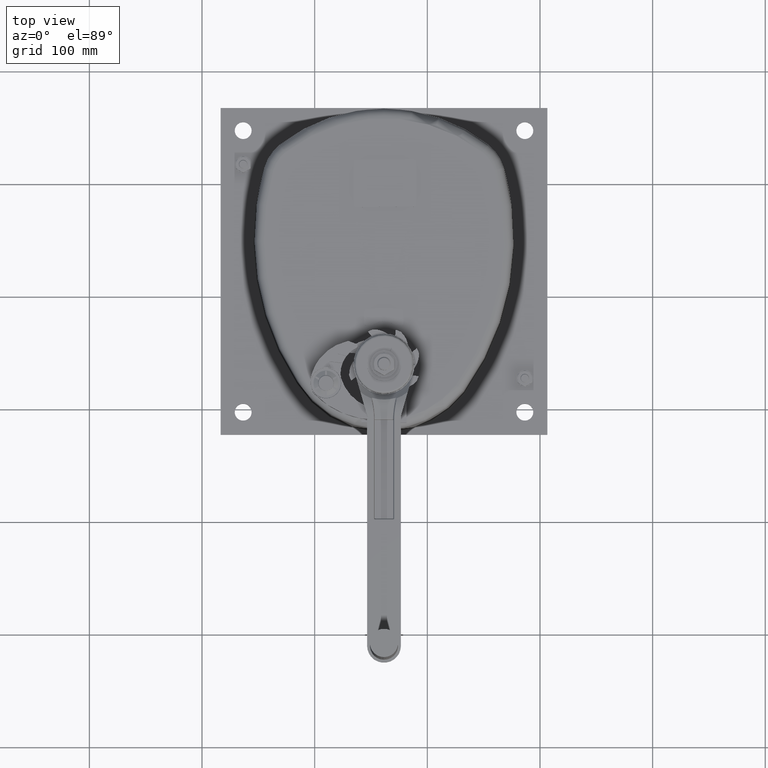
[diagram: clean part render]
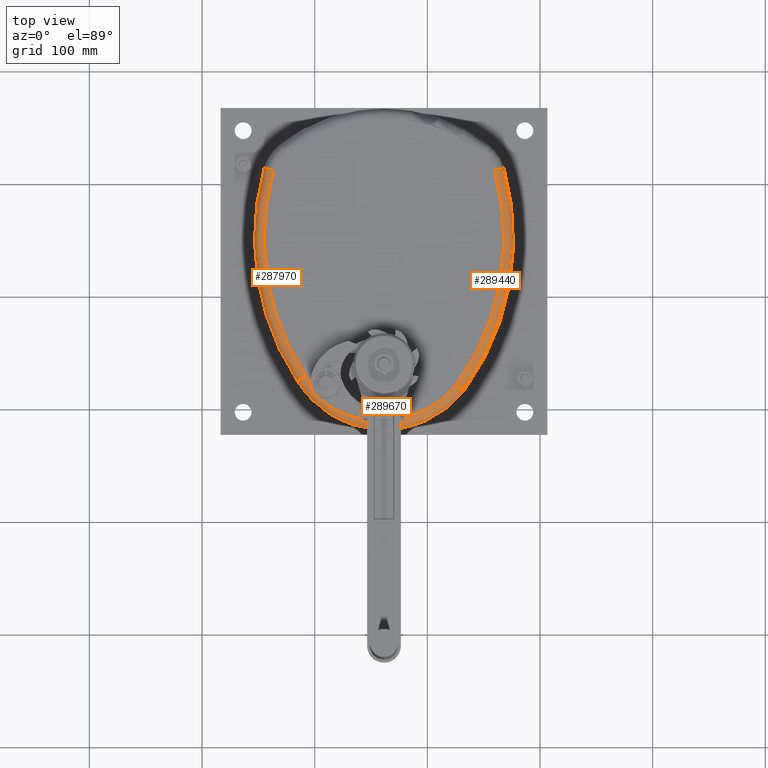
[diagram: same view with one multi-face feature highlighted, each face labeled with its STEP entity id]
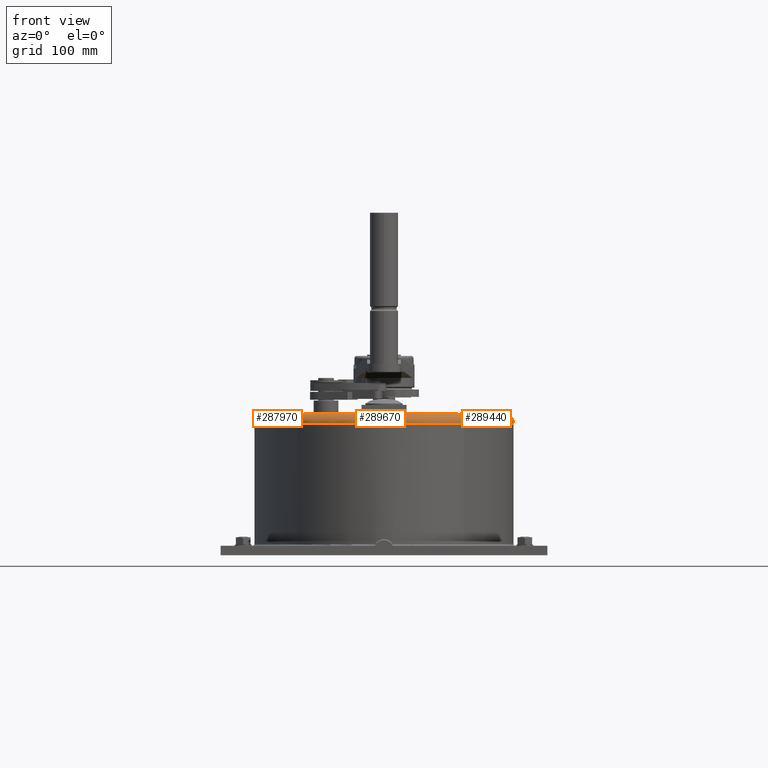
[diagram: same view with one multi-face feature highlighted, each face labeled with its STEP entity id]
A machine part, top view. The highlighted faces form ONE feature: a constant-radius fillet chain: 3 tangent blend faces with common blend radius 8.5 mm. The faces share edges in the B-rep.
A second angle (front view) of the same feature is appended — it is thin or edge-on in the first view.
Their STEP definitions:
[1] entity #287970 (Torus):
#274690=CARTESIAN_POINT('',(75.4740555181235,49.9747951926974,0.));
#274700=VERTEX_POINT('',#274690);
#274730=CARTESIAN_POINT('',(260.,172.5,0.));
#274740=DIRECTION('',(0.,0.,1.));
#274750=DIRECTION('',(1.,0.,0.));
#274760=AXIS2_PLACEMENT_3D('',#274730,#274740,#274750);
#274770=CIRCLE('',#274760,221.5);
#274780=CARTESIAN_POINT('',(46.8140585186033,232.616589679476,0.));
#274790=VERTEX_POINT('',#274780);
#274800=EDGE_CURVE('',#274790,#274700,#274770,.T.);
#281950=CARTESIAN_POINT('',(68.3068132726999,45.4027059204938,-8.5));
#281960=VERTEX_POINT('',#281950);
#285500=CARTESIAN_POINT('',(38.6331081683014,234.923546845506,-8.5));
#285510=VERTEX_POINT('',#285500);
#285540=CARTESIAN_POINT('',(260.,172.5,-8.5));
#285550=DIRECTION('',(0.,0.,1.));
#285560=DIRECTION('',(1.,0.,0.));
#285570=AXIS2_PLACEMENT_3D('',#285540,#285550,#285560);
#285580=CIRCLE('',#285570,230.);
#285590=EDGE_CURVE('',#285510,#281960,#285580,.T.);
#286720=CARTESIAN_POINT('',(260.,172.5,-8.5));
#286730=DIRECTION('',(0.,0.,1.));
#286740=DIRECTION('',(1.,0.,0.));
#286750=AXIS2_PLACEMENT_3D('',#286720,#286730,#286740);
#286760=TOROIDAL_SURFACE('',#286750,221.5,8.5);
#286770=CARTESIAN_POINT('',(145.,92.5,-8.5));
#286780=DIRECTION('',(0.,0.,1.));
#286790=DIRECTION('',(1.,0.,0.));
#286800=AXIS2_PLACEMENT_3D('',#286770,#286780,#286790);
#286810=TOROIDAL_SURFACE('',#286800,81.5,8.5);
#286820=CARTESIAN_POINT('',(68.3068132727001,45.4027059204937,
-8.49999999999999));
#286830=CARTESIAN_POINT('',(68.3068132727001,45.4027059204937,
-8.36158734013068));
#286840=CARTESIAN_POINT('',(68.3096649660083,45.4045261318481,
-8.22285102308471));
#286850=CARTESIAN_POINT('',(68.3153994816324,45.4081864166606,
-8.08402445641227));
#286860=CARTESIAN_POINT('',(68.3211339759411,45.4118466878676,
-7.94519840576499));
#286870=CARTESIAN_POINT('',(68.3297513777462,45.4173470869185,
-7.80628381951965));
#286880=CARTESIAN_POINT('',(68.3412633797954,45.4246950551531,
-7.66752774963768));
#286890=CARTESIAN_POINT('',(68.3527753540653,45.4320430056566,
-7.52877201458381));
#286900=CARTESIAN_POINT('',(68.3671818806412,45.4412384947268,
-7.39017659895003));
#286910=CARTESIAN_POINT('',(68.3844734092554,45.452275389722,
-7.2519957300287));
#286920=CARTESIAN_POINT('',(68.4017649171769,45.4633122715093,
-7.11381502646831));
#286930=CARTESIAN_POINT('',(68.4219412473035,45.4761904443927,
-6.97605071212467));
#286940=CARTESIAN_POINT('',(68.444970943991,45.4908897794936,
-6.83895798262318));
#286950=CARTESIAN_POINT('',(68.4680006400837,45.5055891142149,
-6.70186525666244));
#286960=CARTESIAN_POINT('',(68.493883395441,45.5221094149253,
-6.56544595165419));
#286970=CARTESIAN_POINT('',(68.5225662728514,45.5404168281411,
-6.42995028817379));
#286980=CARTESIAN_POINT('',(68.5512491830754,45.5587242623009,
-6.29445446968465));
#286990=CARTESIAN_POINT('',(68.5827317879726,45.5788185360551,
-6.15988407836067));
#287000=CARTESIAN_POINT('',(68.616941159567,45.6006530243329,
-6.02647867041909));
#287010=CARTESIAN_POINT('',(68.6511506118057,45.6224875640828,
-5.8930729479911));
#287020=CARTESIAN_POINT('',(68.6880862939174,45.6460619755858,
-5.76083389985563));
#287030=CARTESIAN_POINT('',(68.7276578640941,45.6713185088688,
-5.6299849817759));
#287040=CARTESIAN_POINT('',(68.7672295789631,45.6965751345017,
-5.4991355852507));
#287050=CARTESIAN_POINT('',(68.8094365503963,45.7235134787114,
-5.36967786878472));
#287060=CARTESIAN_POINT('',(68.8541747377919,45.7520670398959,
-5.24181403108061));
#287070=CARTESIAN_POINT('',(68.8988968406835,45.7806103353569,
-5.11399616364301));
#287080=CARTESIAN_POINT('',(68.9463529160822,45.8108982551035,
-4.98718542575556));
#287090=CARTESIAN_POINT('',(68.9965034619655,45.8429054707897,
-4.86159234367709));
#287100=CARTESIAN_POINT('',(69.0466532256503,45.8749121872591,
-4.73600122047527));
#287110=CARTESIAN_POINT('',(69.099494615953,45.9086363844744,
-4.61163589678886));
#287120=CARTESIAN_POINT('',(69.1549591960941,45.9440342566532,
-4.48872958794956));
#287130=CARTESIAN_POINT('',(69.2104236393342,45.9794320414608,
-4.36582358247515));
#287140=CARTESIAN_POINT('',(69.2685106493064,46.0165031033724,
-4.24437823285872));
#287150=CARTESIAN_POINT('',(69.3291298224644,46.0551896090047,
-4.1246239499171));
#287160=CARTESIAN_POINT('',(69.3897489198803,46.0938760662992,
-4.00486981660559));
#287170=CARTESIAN_POINT('',(69.4528994221065,46.1341774831825,
-3.88680836895883));
#287180=CARTESIAN_POINT('',(69.5184703201247,46.1760228703529,
-3.77066115247005));
#287190=CARTESIAN_POINT('',(69.5840412130168,46.2178682542519,
-3.65451394506138));
#287200=CARTESIAN_POINT('',(69.652031626995,46.2612570499968,
-3.5402825253667));
#287210=CARTESIAN_POINT('',(69.7223122262752,46.3061065703571,
-3.42817425353497));
#287220=CARTESIAN_POINT('',(69.7925929021646,46.3509561396056,
-3.31606585949991));
#287230=CARTESIAN_POINT('',(69.8651627933197,46.3972658141398,
-3.20608207009168));
#287240=CARTESIAN_POINT('',(69.9398774176082,46.4449432414326,
-3.09841146245206));
#287250=CARTESIAN_POINT('',(70.0145922137182,46.4926207783693,
-2.99074060720184));
#287260=CARTESIAN_POINT('',(70.0914507015457,46.5416654032925,
-2.88538425474036));
#287270=CARTESIAN_POINT('',(70.1702973508385,46.5919777170714,
-2.7825083302766));
#287280=CARTESIAN_POINT('',(70.2491442834433,46.6422902116327,
-2.67963203615891));
#287290=CARTESIAN_POINT('',(70.3299782931071,46.6938697028875,
-2.57923731952603));
#287300=CARTESIAN_POINT('',(70.4126378565436,46.7466129738086,
-2.48146435919401));
#287310=CARTESIAN_POINT('',(70.4952591739025,46.7993318407387,
-2.38373663781647));
#287320=CARTESIAN_POINT('',(70.5799721687508,46.8533842966931,
-2.28831028483606));
#287330=CARTESIAN_POINT('',(70.6666766018715,46.9087062121126,
-2.19532318774382));
#287340=CARTESIAN_POINT('',(70.7533777370631,46.9640260232827,
-2.10233962755087));
#287350=CARTESIAN_POINT('',(70.8420559185902,47.0206061106263,
-2.01181188782708));
#287360=CARTESIAN_POINT('',(70.9325565161011,47.0783476455374,
-1.92390766875983));
#287370=CARTESIAN_POINT('',(71.0230571022646,47.1360891732087,
-1.83600346071447));
#287380=CARTESIAN_POINT('',(71.1153789476922,47.1949914100936,
-1.75072390504573));
#287390=CARTESIAN_POINT('',(71.2093539950467,47.2549469708587,
-1.66821804179678));
#287400=CARTESIAN_POINT('',(71.3033291419621,47.3149025951431,
-1.58571209113781));
#287410=CARTESIAN_POINT('',(71.398956268727,47.3759107633909,
-1.50598084058202));
#287420=CARTESIAN_POINT('',(71.4960580093096,47.4378581641438,
-1.42915136722493));
#287430=CARTESIAN_POINT('',(71.5931238060417,47.4997826340193,
-1.3523503335959));
#287440=CARTESIAN_POINT('',(71.6918586104775,47.5627703546809,
-1.27829269406625));
#287450=CARTESIAN_POINT('',(71.7921528472642,47.6267512549734,
-1.20708208539731));
#287460=CARTESIAN_POINT('',(71.8924423452481,47.690729132232,
-1.13587484135877));
#287470=CARTESIAN_POINT('',(71.9942705502783,47.7556869670862,
-1.06753054722017));
#287480=CARTESIAN_POINT('',(72.0974585405057,47.8215104638231,
-1.00217830598582));
#287490=CARTESIAN_POINT('',(72.2006465138445,47.8873339497869,
-0.936826075447576));
#287500=CARTESIAN_POINT('',(72.3051929536792,47.9540222559984,
-0.874466742309491));
#287510=CARTESIAN_POINT('',(72.410908713665,48.0214545834286,
-0.815208092169677));
#287520=CARTESIAN_POINT('',(72.5166245814878,48.0888869796442,
-0.755949381582071));
#287530=CARTESIAN_POINT('',(72.6235084060055,48.1570625271651,
-0.699792062400562));
#287540=CARTESIAN_POINT('',(72.7313653822578,48.225856838866,
-0.646820285655887));
#287550=CARTESIAN_POINT('',(72.8391631884439,48.2946134101803,
-0.59387756909489));
#287560=CARTESIAN_POINT('',(72.9481996366964,48.3641580873387,
-0.543982701882982));
#287570=CARTESIAN_POINT('',(73.0584388499538,48.434467835126,
-0.497190318189544));
#287580=CARTESIAN_POINT('',(73.168666473866,48.5047701913154,
-0.450402853735539));
#287590=CARTESIAN_POINT('',(73.2800476767774,48.5758062461173,
-0.406741207562143));
#287600=CARTESIAN_POINT('',(73.3923937746995,48.6474555220536,
-0.366309494031849));
#287610=CARTESIAN_POINT('',(73.504739634281,48.719104645987,
-0.32587786627684));
#287620=CARTESIAN_POINT('',(73.618048971405,48.7913660867799,
-0.2886767914292));
#287630=CARTESIAN_POINT('',(73.732120325195,48.864111244036,
-0.254789545767885));
#287640=CARTESIAN_POINT('',(73.846191574238,48.9368563344933,
-0.220902331223826));
#287650=CARTESIAN_POINT('',(73.9610233494828,49.0100841900353,
-0.190329435755805));
#287660=CARTESIAN_POINT('',(74.076405994771,49.0836610143371,
-0.163130449998268));
#287670=CARTESIAN_POINT('',(74.1917886689475,49.1572378570603,
-0.135931457430959));
#287680=CARTESIAN_POINT('',(74.3077206860372,49.2311626948109,
-0.112106721867781));
#287690=CARTESIAN_POINT('',(74.4239890019379,49.3052995996301,
-0.0916905772519767));
#287700=CARTESIAN_POINT('',(74.5402574839158,49.3794366103462,
-0.0712744034738203));
#287710=CARTESIAN_POINT('',(74.6568607382957,49.4537847155454,
-0.054267016902175));
#287720=CARTESIAN_POINT('',(74.7735873612618,49.5282090680902,
-0.0406771864421707));
#287730=CARTESIAN_POINT('',(74.8903142946593,49.6026336185646,
-0.0270873198403748));
#287740=CARTESIAN_POINT('',(75.0071631105888,49.6771334688953,
-0.0169150496566816));
#287750=CARTESIAN_POINT('',(75.1239293074418,49.7515782065526,
-0.0101445654689751));
#287760=CARTESIAN_POINT('',(75.1823149394772,49.7888021906933,
-0.0067591764682359));
#287770=CARTESIAN_POINT('',(75.2406691971625,49.8260055630818,
-0.00422424665373172));
#287780=CARTESIAN_POINT('',(75.2989980360501,49.8631921191381,
-0.00253482833790151));
#287790=CARTESIAN_POINT('',(75.357337942647,49.9003857312236,
-0.00084508946038878));
#287800=CARTESIAN_POINT('',(75.4156991337333,49.9375923016104,
1.34041386773488E-16));
#287810=CARTESIAN_POINT('',(75.4740555181235,49.9747951926975,0.));
#287820=B_SPLINE_CURVE_WITH_KNOTS('',3,(#286820,#286830,#286840,#286850,
#286860,#286870,#286880,#286890,#286900,#286910,#286920,#286930,#286940,
#286950,#286960,#286970,#286980,#286990,#287000,#287010,#287020,#287030,
#287040,#287050,#287060,#287070,#287080,#287090,#287100,#287110,#287120,
#287130,#287140,#287150,#287160,#287170,#287180,#287190,#287200,#287210,
#287220,#287230,#287240,#287250,#287260,#287270,#287280,#287290,#287300,
#287310,#287320,#287330,#287340,#287350,#287360,#287370,#287380,#287390,
#287400,#287410,#287420,#287430,#287440,#287450,#287460,#287470,#287480,
#287490,#287500,#287510,#287520,#287530,#287540,#287550,#287560,#287570,
#287580,#287590,#287600,#287610,#287620,#287630,#287640,#287650,#287660,
#287670,#287680,#287690,#287700,#287710,#287720,#287730,#287740,#287750,
#287760,#287770,#287780,#287790,#287800,#287810),.UNSPECIFIED.,.F.,.F.,(
4,3,3,3,3,3,3,3,3,3,3,3,3,3,3,3,3,3,3,3,3,3,3,3,3,3,3,3,3,3,3,3,3,4),(0.
,0.416141813575699,0.833809253572611,1.25253363134683,1.67180305770694,
2.09108447814528,2.50984436035732,2.92756935165814,3.34378822518114,
3.75985575044589,4.17746437966038,4.59615194734675,5.01540819225644,
5.43470070869969,5.85349565658832,6.2712783807074,6.68757525814475,
7.10317250612274,7.51931107335108,7.93550327183336,8.35124720217719,
8.76682138964509,9.18294978734633,9.59914819371969,10.0149145435469,
10.4307500826794,10.8479483051717,11.2660700088339,11.6846049314201,
12.1030264811246,12.5208124593429,12.9374660637787,13.1452322330893,
13.3528591467151),.UNSPECIFIED.);
#287830=SURFACE_CURVE('',#287820,(#286810,#286760),.CURVE_3D.);
#287840=EDGE_CURVE('',#281960,#274700,#287830,.T.);
#287850=ORIENTED_EDGE('',*,*,#287840,.T.);
#287860=ORIENTED_EDGE('',*,*,#285590,.T.);
#287870=CARTESIAN_POINT('',(46.8140585186034,232.616589679476,-8.5));
#287880=DIRECTION('',(-0.271406725415243,-0.962464747094342,0.));
#287890=DIRECTION('',(-0.962464747094342,0.271406725415243,0.));
#287900=AXIS2_PLACEMENT_3D('',#287870,#287880,#287890);
#287910=CIRCLE('',#287900,8.5);
#287920=EDGE_CURVE('',#274790,#285510,#287910,.T.);
#287930=ORIENTED_EDGE('',*,*,#287920,.T.);
#287940=ORIENTED_EDGE('',*,*,#274800,.F.);
#287950=EDGE_LOOP('',(#287940,#287930,#287860,#287850));
#287960=FACE_OUTER_BOUND('',#287950,.T.);
#287970=ADVANCED_FACE('',(#287960),#286760,.T.);
[2] entity #289670 (Torus):
#274110=CARTESIAN_POINT('',(209.049851696467,42.102911813672,0.));
#274120=VERTEX_POINT('',#274110);
#274150=CARTESIAN_POINT('',(145.,92.5,0.));
#274160=DIRECTION('',(0.,0.,1.));
#274170=DIRECTION('',(1.,0.,0.));
#274180=AXIS2_PLACEMENT_3D('',#274150,#274160,#274170);
#274190=CIRCLE('',#274180,81.5);
#274200=CARTESIAN_POINT('',(165.,13.4920890036953,0.));
#274210=VERTEX_POINT('',#274200);
#274220=EDGE_CURVE('',#274210,#274120,#274190,.T.);
#274440=CARTESIAN_POINT('',(125.,13.4920890036953,0.));
#274450=VERTEX_POINT('',#274440);
#274480=CARTESIAN_POINT('',(87.6882504963632,34.5550833218963,
4.44089209850063E-16));
#274490=VERTEX_POINT('',#274480);
#274500=EDGE_CURVE('',#274490,#274450,#274190,.T.);
#274650=CARTESIAN_POINT('',(84.4988588239651,37.8935725724756,
4.44089209850063E-16));
#274660=VERTEX_POINT('',#274650);
#274690=CARTESIAN_POINT('',(75.4740555181235,49.9747951926974,0.));
#274700=VERTEX_POINT('',#274690);
#274710=EDGE_CURVE('',#274700,#274660,#274190,.T.);
#279170=CARTESIAN_POINT('',(215.829106266331,36.9730902578501,-8.5));
#279180=VERTEX_POINT('',#279170);
#281900=CARTESIAN_POINT('',(145.,92.5,-8.5));
#281910=DIRECTION('',(0.,0.,1.));
#281920=DIRECTION('',(1.,0.,0.));
#281930=AXIS2_PLACEMENT_3D('',#281900,#281910,#281920);
#281940=CIRCLE('',#281930,90.);
#281950=CARTESIAN_POINT('',(68.3068132726999,45.4027059204938,-8.5));
#281960=VERTEX_POINT('',#281950);
#281970=EDGE_CURVE('',#281960,#279180,#281940,.T.);
#286720=CARTESIAN_POINT('',(260.,172.5,-8.5));
#286730=DIRECTION('',(0.,0.,1.));
#286740=DIRECTION('',(1.,0.,0.));
#286750=AXIS2_PLACEMENT_3D('',#286720,#286730,#286740);
#286760=TOROIDAL_SURFACE('',#286750,221.5,8.5);
#286770=CARTESIAN_POINT('',(145.,92.5,-8.5));
#286780=DIRECTION('',(0.,0.,1.));
#286790=DIRECTION('',(1.,0.,0.));
#286800=AXIS2_PLACEMENT_3D('',#286770,#286780,#286790);
#286810=TOROIDAL_SURFACE('',#286800,81.5,8.5);
#286820=CARTESIAN_POINT('',(68.3068132727001,45.4027059204937,
-8.49999999999999));
#286830=CARTESIAN_POINT('',(68.3068132727001,45.4027059204937,
-8.36158734013068));
#286840=CARTESIAN_POINT('',(68.3096649660083,45.4045261318481,
-8.22285102308471));
#286850=CARTESIAN_POINT('',(68.3153994816324,45.4081864166606,
-8.08402445641227));
#286860=CARTESIAN_POINT('',(68.3211339759411,45.4118466878676,
-7.94519840576499));
#286870=CARTESIAN_POINT('',(68.3297513777462,45.4173470869185,
-7.80628381951965));
#286880=CARTESIAN_POINT('',(68.3412633797954,45.4246950551531,
-7.66752774963768));
#286890=CARTESIAN_POINT('',(68.3527753540653,45.4320430056566,
-7.52877201458381));
#286900=CARTESIAN_POINT('',(68.3671818806412,45.4412384947268,
-7.39017659895003));
#286910=CARTESIAN_POINT('',(68.3844734092554,45.452275389722,
-7.2519957300287));
#286920=CARTESIAN_POINT('',(68.4017649171769,45.4633122715093,
-7.11381502646831));
#286930=CARTESIAN_POINT('',(68.4219412473035,45.4761904443927,
-6.97605071212467));
#286940=CARTESIAN_POINT('',(68.444970943991,45.4908897794936,
-6.83895798262318));
#286950=CARTESIAN_POINT('',(68.4680006400837,45.5055891142149,
-6.70186525666244));
#286960=CARTESIAN_POINT('',(68.493883395441,45.5221094149253,
-6.56544595165419));
#286970=CARTESIAN_POINT('',(68.5225662728514,45.5404168281411,
-6.42995028817379));
#286980=CARTESIAN_POINT('',(68.5512491830754,45.5587242623009,
-6.29445446968465));
#286990=CARTESIAN_POINT('',(68.5827317879726,45.5788185360551,
-6.15988407836067));
#287000=CARTESIAN_POINT('',(68.616941159567,45.6006530243329,
-6.02647867041909));
#287010=CARTESIAN_POINT('',(68.6511506118057,45.6224875640828,
-5.8930729479911));
#287020=CARTESIAN_POINT('',(68.6880862939174,45.6460619755858,
-5.76083389985563));
#287030=CARTESIAN_POINT('',(68.7276578640941,45.6713185088688,
-5.6299849817759));
#287040=CARTESIAN_POINT('',(68.7672295789631,45.6965751345017,
-5.4991355852507));
#287050=CARTESIAN_POINT('',(68.8094365503963,45.7235134787114,
-5.36967786878472));
#287060=CARTESIAN_POINT('',(68.8541747377919,45.7520670398959,
-5.24181403108061));
#287070=CARTESIAN_POINT('',(68.8988968406835,45.7806103353569,
-5.11399616364301));
#287080=CARTESIAN_POINT('',(68.9463529160822,45.8108982551035,
-4.98718542575556));
#287090=CARTESIAN_POINT('',(68.9965034619655,45.8429054707897,
-4.86159234367709));
#287100=CARTESIAN_POINT('',(69.0466532256503,45.8749121872591,
-4.73600122047527));
#287110=CARTESIAN_POINT('',(69.099494615953,45.9086363844744,
-4.61163589678886));
#287120=CARTESIAN_POINT('',(69.1549591960941,45.9440342566532,
-4.48872958794956));
#287130=CARTESIAN_POINT('',(69.2104236393342,45.9794320414608,
-4.36582358247515));
#287140=CARTESIAN_POINT('',(69.2685106493064,46.0165031033724,
-4.24437823285872));
#287150=CARTESIAN_POINT('',(69.3291298224644,46.0551896090047,
-4.1246239499171));
#287160=CARTESIAN_POINT('',(69.3897489198803,46.0938760662992,
-4.00486981660559));
#287170=CARTESIAN_POINT('',(69.4528994221065,46.1341774831825,
-3.88680836895883));
#287180=CARTESIAN_POINT('',(69.5184703201247,46.1760228703529,
-3.77066115247005));
#287190=CARTESIAN_POINT('',(69.5840412130168,46.2178682542519,
-3.65451394506138));
#287200=CARTESIAN_POINT('',(69.652031626995,46.2612570499968,
-3.5402825253667));
#287210=CARTESIAN_POINT('',(69.7223122262752,46.3061065703571,
-3.42817425353497));
#287220=CARTESIAN_POINT('',(69.7925929021646,46.3509561396056,
-3.31606585949991));
#287230=CARTESIAN_POINT('',(69.8651627933197,46.3972658141398,
-3.20608207009168));
#287240=CARTESIAN_POINT('',(69.9398774176082,46.4449432414326,
-3.09841146245206));
#287250=CARTESIAN_POINT('',(70.0145922137182,46.4926207783693,
-2.99074060720184));
#287260=CARTESIAN_POINT('',(70.0914507015457,46.5416654032925,
-2.88538425474036));
#287270=CARTESIAN_POINT('',(70.1702973508385,46.5919777170714,
-2.7825083302766));
#287280=CARTESIAN_POINT('',(70.2491442834433,46.6422902116327,
-2.67963203615891));
#287290=CARTESIAN_POINT('',(70.3299782931071,46.6938697028875,
-2.57923731952603));
#287300=CARTESIAN_POINT('',(70.4126378565436,46.7466129738086,
-2.48146435919401));
#287310=CARTESIAN_POINT('',(70.4952591739025,46.7993318407387,
-2.38373663781647));
#287320=CARTESIAN_POINT('',(70.5799721687508,46.8533842966931,
-2.28831028483606));
#287330=CARTESIAN_POINT('',(70.6666766018715,46.9087062121126,
-2.19532318774382));
#287340=CARTESIAN_POINT('',(70.7533777370631,46.9640260232827,
-2.10233962755087));
#287350=CARTESIAN_POINT('',(70.8420559185902,47.0206061106263,
-2.01181188782708));
#287360=CARTESIAN_POINT('',(70.9325565161011,47.0783476455374,
-1.92390766875983));
#287370=CARTESIAN_POINT('',(71.0230571022646,47.1360891732087,
-1.83600346071447));
#287380=CARTESIAN_POINT('',(71.1153789476922,47.1949914100936,
-1.75072390504573));
#287390=CARTESIAN_POINT('',(71.2093539950467,47.2549469708587,
-1.66821804179678));
#287400=CARTESIAN_POINT('',(71.3033291419621,47.3149025951431,
-1.58571209113781));
#287410=CARTESIAN_POINT('',(71.398956268727,47.3759107633909,
-1.50598084058202));
#287420=CARTESIAN_POINT('',(71.4960580093096,47.4378581641438,
-1.42915136722493));
#287430=CARTESIAN_POINT('',(71.5931238060417,47.4997826340193,
-1.3523503335959));
#287440=CARTESIAN_POINT('',(71.6918586104775,47.5627703546809,
-1.27829269406625));
#287450=CARTESIAN_POINT('',(71.7921528472642,47.6267512549734,
-1.20708208539731));
#287460=CARTESIAN_POINT('',(71.8924423452481,47.690729132232,
-1.13587484135877));
#287470=CARTESIAN_POINT('',(71.9942705502783,47.7556869670862,
-1.06753054722017));
#287480=CARTESIAN_POINT('',(72.0974585405057,47.8215104638231,
-1.00217830598582));
#287490=CARTESIAN_POINT('',(72.2006465138445,47.8873339497869,
-0.936826075447576));
#287500=CARTESIAN_POINT('',(72.3051929536792,47.9540222559984,
-0.874466742309491));
#287510=CARTESIAN_POINT('',(72.410908713665,48.0214545834286,
-0.815208092169677));
#287520=CARTESIAN_POINT('',(72.5166245814878,48.0888869796442,
-0.755949381582071));
#287530=CARTESIAN_POINT('',(72.6235084060055,48.1570625271651,
-0.699792062400562));
#287540=CARTESIAN_POINT('',(72.7313653822578,48.225856838866,
-0.646820285655887));
#287550=CARTESIAN_POINT('',(72.8391631884439,48.2946134101803,
-0.59387756909489));
#287560=CARTESIAN_POINT('',(72.9481996366964,48.3641580873387,
-0.543982701882982));
#287570=CARTESIAN_POINT('',(73.0584388499538,48.434467835126,
-0.497190318189544));
#287580=CARTESIAN_POINT('',(73.168666473866,48.5047701913154,
-0.450402853735539));
#287590=CARTESIAN_POINT('',(73.2800476767774,48.5758062461173,
-0.406741207562143));
#287600=CARTESIAN_POINT('',(73.3923937746995,48.6474555220536,
-0.366309494031849));
#287610=CARTESIAN_POINT('',(73.504739634281,48.719104645987,
-0.32587786627684));
#287620=CARTESIAN_POINT('',(73.618048971405,48.7913660867799,
-0.2886767914292));
#287630=CARTESIAN_POINT('',(73.732120325195,48.864111244036,
-0.254789545767885));
#287640=CARTESIAN_POINT('',(73.846191574238,48.9368563344933,
-0.220902331223826));
#287650=CARTESIAN_POINT('',(73.9610233494828,49.0100841900353,
-0.190329435755805));
#287660=CARTESIAN_POINT('',(74.076405994771,49.0836610143371,
-0.163130449998268));
#287670=CARTESIAN_POINT('',(74.1917886689475,49.1572378570603,
-0.135931457430959));
#287680=CARTESIAN_POINT('',(74.3077206860372,49.2311626948109,
-0.112106721867781));
#287690=CARTESIAN_POINT('',(74.4239890019379,49.3052995996301,
-0.0916905772519767));
#287700=CARTESIAN_POINT('',(74.5402574839158,49.3794366103462,
-0.0712744034738203));
#287710=CARTESIAN_POINT('',(74.6568607382957,49.4537847155454,
-0.054267016902175));
#287720=CARTESIAN_POINT('',(74.7735873612618,49.5282090680902,
-0.0406771864421707));
#287730=CARTESIAN_POINT('',(74.8903142946593,49.6026336185646,
-0.0270873198403748));
#287740=CARTESIAN_POINT('',(75.0071631105888,49.6771334688953,
-0.0169150496566816));
#287750=CARTESIAN_POINT('',(75.1239293074418,49.7515782065526,
-0.0101445654689751));
#287760=CARTESIAN_POINT('',(75.1823149394772,49.7888021906933,
-0.0067591764682359));
#287770=CARTESIAN_POINT('',(75.2406691971625,49.8260055630818,
-0.00422424665373172));
#287780=CARTESIAN_POINT('',(75.2989980360501,49.8631921191381,
-0.00253482833790151));
#287790=CARTESIAN_POINT('',(75.357337942647,49.9003857312236,
-0.00084508946038878));
#287800=CARTESIAN_POINT('',(75.4156991337333,49.9375923016104,
1.34041386773488E-16));
#287810=CARTESIAN_POINT('',(75.4740555181235,49.9747951926975,0.));
#287820=B_SPLINE_CURVE_WITH_KNOTS('',3,(#286820,#286830,#286840,#286850,
#286860,#286870,#286880,#286890,#286900,#286910,#286920,#286930,#286940,
#286950,#286960,#286970,#286980,#286990,#287000,#287010,#287020,#287030,
#287040,#287050,#287060,#287070,#287080,#287090,#287100,#287110,#287120,
#287130,#287140,#287150,#287160,#287170,#287180,#287190,#287200,#287210,
#287220,#287230,#287240,#287250,#287260,#287270,#287280,#287290,#287300,
#287310,#287320,#287330,#287340,#287350,#287360,#287370,#287380,#287390,
#287400,#287410,#287420,#287430,#287440,#287450,#287460,#287470,#287480,
#287490,#287500,#287510,#287520,#287530,#287540,#287550,#287560,#287570,
#287580,#287590,#287600,#287610,#287620,#287630,#287640,#287650,#287660,
#287670,#287680,#287690,#287700,#287710,#287720,#287730,#287740,#287750,
#287760,#287770,#287780,#287790,#287800,#287810),.UNSPECIFIED.,.F.,.F.,(
4,3,3,3,3,3,3,3,3,3,3,3,3,3,3,3,3,3,3,3,3,3,3,3,3,3,3,3,3,3,3,3,3,4),(0.
,0.416141813575699,0.833809253572611,1.25253363134683,1.67180305770694,
2.09108447814528,2.50984436035732,2.92756935165814,3.34378822518114,
3.75985575044589,4.17746437966038,4.59615194734675,5.01540819225644,
5.43470070869969,5.85349565658832,6.2712783807074,6.68757525814475,
7.10317250612274,7.51931107335108,7.93550327183336,8.35124720217719,
8.76682138964509,9.18294978734633,9.59914819371969,10.0149145435469,
10.4307500826794,10.8479483051717,11.2660700088339,11.6846049314201,
12.1030264811246,12.5208124593429,12.9374660637787,13.1452322330893,
13.3528591467151),.UNSPECIFIED.);
#287830=SURFACE_CURVE('',#287820,(#286810,#286760),.CURVE_3D.);
#287840=EDGE_CURVE('',#281960,#274700,#287830,.T.);
#288300=CARTESIAN_POINT('',(30.,172.5,-8.5));
#288310=DIRECTION('',(0.,0.,1.));
#288320=DIRECTION('',(1.,0.,0.));
#288330=AXIS2_PLACEMENT_3D('',#288300,#288310,#288320);
#288340=TOROIDAL_SURFACE('',#288330,221.5,8.5);
#288370=CARTESIAN_POINT('',(209.049851696467,42.1029118136719,0.));
#288380=CARTESIAN_POINT('',(209.105023822483,42.0611385456751,
-1.71650608657621E-16));
#288390=CARTESIAN_POINT('',(209.160201076155,42.0193620456561,
-0.000844992334589945));
#288400=CARTESIAN_POINT('',(209.215358788938,41.9776009868681,
-0.00253453639512458));
#288410=CARTESIAN_POINT('',(209.27050589828,41.9358479561662,
-0.00422375566013131));
#288420=CARTESIAN_POINT('',(209.325677833636,41.8940767753073,
-0.00675838102466053));
#288430=CARTESIAN_POINT('',(209.380881295985,41.8522823693869,
-0.0101434779447347));
#288440=CARTESIAN_POINT('',(209.491283258178,41.7686973146462,
-0.0169133674822416));
#288450=CARTESIAN_POINT('',(209.601769380394,41.685051121432,
-0.0270850331655406));
#288460=CARTESIAN_POINT('',(209.712146543568,41.6014899666871,
-0.0406750314328868));
#288470=CARTESIAN_POINT('',(209.822523405161,41.5179290402538,
-0.0542649925686989));
#288480=CARTESIAN_POINT('',(209.932789903894,41.4344542150695,
-0.0712732497795894));
#288490=CARTESIAN_POINT('',(210.042746128082,41.3512167747191,
-0.0916918105138906));
#288500=CARTESIAN_POINT('',(210.152702187599,41.2679794590247,
-0.112110340669469));
#288510=CARTESIAN_POINT('',(210.262346529503,41.1849806216159,
-0.135938981467848));
#288520=CARTESIAN_POINT('',(210.371477438747,41.1023728736713,
-0.163144147097224));
#288530=CARTESIAN_POINT('',(210.480608313228,41.0197651520423,
-0.190349304060111));
#288540=CARTESIAN_POINT('',(210.589224308842,40.9375496147751,
-0.220930641445527));
#288550=CARTESIAN_POINT('',(210.697126680426,40.8558765955274,
-0.25482923175112));
#288560=CARTESIAN_POINT('',(210.805029143568,40.7742035069787,
-0.288727850820318));
#288570=CARTESIAN_POINT('',(210.91221656832,40.6930740058216,
-0.325943235227469));
#288580=CARTESIAN_POINT('',(211.018497732152,40.6126326990491,
-0.366392629152069));
#288590=CARTESIAN_POINT('',(211.124779113611,40.5321912275606,
-0.406842105903111));
#288600=CARTESIAN_POINT('',(211.230152887667,40.4524389692811,
-0.450524973509988));
#288610=CARTESIAN_POINT('',(211.334439698541,40.3735115223656,
-0.497337434355641));
#288620=CARTESIAN_POINT('',(211.438727522066,40.2945833090444,
-0.544150349762304));
#288630=CARTESIAN_POINT('',(211.541924294706,40.2164830003671,
-0.594090705298137));
#288640=CARTESIAN_POINT('',(211.643874704169,40.1393279750616,
-0.647041928354469));
#288650=CARTESIAN_POINT('',(211.745848507888,40.0621552452219,
-0.700005301970476));
#288660=CARTESIAN_POINT('',(211.846910939203,39.9856742826995,
-0.756155592887328));
#288670=CARTESIAN_POINT('',(211.946877715917,39.9100244086762,
-0.815410183469491));
#288680=CARTESIAN_POINT('',(212.046844376732,39.8343746223599,
-0.874664705353015));
#288690=CARTESIAN_POINT('',(212.145714093953,39.7595568997986,
-0.937022826471761));
#288700=CARTESIAN_POINT('',(212.243307491016,39.6857068271872,
-1.00237813986788));
#288710=CARTESIAN_POINT('',(212.340900890635,39.6118567526408,
-1.0677334549763));
#288720=CARTESIAN_POINT('',(212.43721671998,39.5389752735602,
-1.13608512387617));
#288730=CARTESIAN_POINT('',(212.532084873993,39.4671909402862,
-1.20730516453584));
#288740=CARTESIAN_POINT('',(212.626953152673,39.3954065126798,
-1.27852529878646));
#288750=CARTESIAN_POINT('',(212.720372536172,39.3247201536065,
-1.35261281658676));
#288760=CARTESIAN_POINT('',(212.81218618713,39.2552503575278,
-1.42942161380997));
#288770=CARTESIAN_POINT('',(212.904002316918,39.1857786858697,
-1.50623248475449));
#288780=CARTESIAN_POINT('',(212.994431900334,39.1173577327992,
-1.58594822516644));
#288790=CARTESIAN_POINT('',(213.083306875219,39.0501144940632,
-1.66844329574394));
#288800=CARTESIAN_POINT('',(213.172181743525,38.9828713359654,
-1.75093826739321));
#288810=CARTESIAN_POINT('',(213.259500846672,38.9168067670866,
-1.83621156966428));
#288820=CARTESIAN_POINT('',(213.345104518842,38.8520414168386,
-1.92411544590618));
#288830=CARTESIAN_POINT('',(213.43070818995,38.7872760673939,
-2.01201932105792));
#288840=CARTESIAN_POINT('',(213.514595332279,38.7238107667225,
-2.10255264388109));
#288850=CARTESIAN_POINT('',(213.596618635351,38.6617567860092,
-2.19554865307501));
#288860=CARTESIAN_POINT('',(213.678642034724,38.5997027324407,
-2.28854477145211));
#288870=CARTESIAN_POINT('',(213.758800584014,38.5390607632682,
-2.38400235184051));
#288880=CARTESIAN_POINT('',(213.83696263254,38.4799302953583,
-2.48173984327576));
#288890=CARTESIAN_POINT('',(213.915110992522,38.4208101829845,
-2.57946021791553));
#288900=CARTESIAN_POINT('',(213.991537527405,38.3629937765797,
-2.67980185906085));
#288910=CARTESIAN_POINT('',(214.066092760216,38.3065939965408,
-2.78263060192697));
#288920=CARTESIAN_POINT('',(214.14064747211,38.250194610567,
-2.88545862632882));
#288930=CARTESIAN_POINT('',(214.213328775111,38.1952134445649,
-2.99077122546691));
#288940=CARTESIAN_POINT('',(214.28398923453,38.1417618674122,
-3.09840430185684));
#288950=CARTESIAN_POINT('',(214.354649521149,38.0883104209748,
-3.20603711503123));
#288960=CARTESIAN_POINT('',(214.423287978769,38.0363893085863,
-3.31598909586912));
#288970=CARTESIAN_POINT('',(214.48976721312,37.9861023001862,
-3.42807316890557));
#288980=CARTESIAN_POINT('',(214.556246365809,37.935815353558,
-3.54015710425963));
#288990=CARTESIAN_POINT('',(214.620565375046,37.8871632068245,
-3.65437168282606));
#289000=CARTESIAN_POINT('',(214.682600852476,37.8402390345862,
-3.77051066035857));
#289010=CARTESIAN_POINT('',(214.744636326317,37.793314865063,
-3.88664963117137));
#289020=CARTESIAN_POINT('',(214.804387436284,37.7481192991821,
-4.00471144858724));
#289030=CARTESIAN_POINT('',(214.861747890916,37.7047325822943,
-4.12447523404108));
#289040=CARTESIAN_POINT('',(214.919108409248,37.661345817225,
-4.24423915249406));
#289050=CARTESIAN_POINT('',(214.974077548283,37.6197684484309,
-4.36570342049234));
#289060=CARTESIAN_POINT('',(215.02656834772,37.5800661049986,
-4.48863777472019));
#289070=CARTESIAN_POINT('',(215.079059269001,37.5403636694077,
-4.61157241430835));
#289080=CARTESIAN_POINT('',(215.129071252804,37.5025367111968,
-4.73597549557673));
#289090=CARTESIAN_POINT('',(215.176538036743,37.4666352128318,
-4.86161335143313));
#289100=CARTESIAN_POINT('',(215.224004992352,37.4307335846234,
-4.98725166167835));
#289110=CARTESIAN_POINT('',(215.268926292477,37.3967577606983,
-5.11412312074658));
#289120=CARTESIAN_POINT('',(215.31125682274,37.3647417392638,
-5.2419973951236));
#289130=CARTESIAN_POINT('',(215.353564929047,37.3327426778311,
-5.36980393004314));
#289140=CARTESIAN_POINT('',(215.393472735379,37.3025593599918,
-5.49917693505068));
#289150=CARTESIAN_POINT('',(215.43089778948,37.2742540427655,
-5.62996621347086));
#289160=CARTESIAN_POINT('',(215.468321521392,37.2459497255375,
-5.76075087123742));
#289170=CARTESIAN_POINT('',(215.503256302342,37.2195280970595,
-5.89293267113471));
#289180=CARTESIAN_POINT('',(215.535615876237,37.195054300293,
-6.02628980220177));
#289190=CARTESIAN_POINT('',(215.567975369101,37.1705805648117,
-6.15964659932696));
#289200=CARTESIAN_POINT('',(215.597759143367,37.1480550477802,
-6.29417704755916));
#289210=CARTESIAN_POINT('',(215.624897146596,37.1275306480615,
-6.42964273543294));
#289220=CARTESIAN_POINT('',(215.652035115004,37.1070062746777,
-6.56510824949066));
#289230=CARTESIAN_POINT('',(215.676526903421,37.088483327813,
-6.70150722388473));
#289240=CARTESIAN_POINT('',(215.69832120087,37.0720005448045,
-6.83859006886398));
#289250=CARTESIAN_POINT('',(215.720115495905,37.055517763621,
-6.97567289866534));
#289260=CARTESIAN_POINT('',(215.739212003855,37.0410753701504,
-7.11343776495594));
#289270=CARTESIAN_POINT('',(215.755579660013,37.0286968040169,
-7.25162956892453));
#289280=CARTESIAN_POINT('',(215.771947333478,37.0163182247939,
-7.38982151902177));
#289290=CARTESIAN_POINT('',(215.785585978993,37.0060036060342,
-7.52843856194686));
#289300=CARTESIAN_POINT('',(215.79648527161,36.9977607173298,
-7.66722600484899));
#289310=CARTESIAN_POINT('',(215.807384588925,36.9895178099476,
-7.80601376223431));
#289320=CARTESIAN_POINT('',(215.815544501488,36.9833466718159,
-7.944970109531));
#289330=CARTESIAN_POINT('',(215.820974892743,36.9792398050362,
-8.08384693005313));
#289340=CARTESIAN_POINT('',(215.826405303315,36.9751329236473,
-8.22272424459926));
#289350=CARTESIAN_POINT('',(215.82910626633,36.97309025785,
-8.36152030612775));
#289360=CARTESIAN_POINT('',(215.82910626633,36.97309025785,-8.5));
#289370=B_SPLINE_CURVE_WITH_KNOTS('',3,(#288370,#288380,#288390,#288400,
#288410,#288420,#288430,#288440,#288450,#288460,#288470,#288480,#288490,
#288500,#288510,#288520,#288530,#288540,#288550,#288560,#288570,#288580,
#288590,#288600,#288610,#288620,#288630,#288640,#288650,#288660,#288670,
#288680,#288690,#288700,#288710,#288720,#288730,#288740,#288750,#288760,
#288770,#288780,#288790,#288800,#288810,#288820,#288830,#288840,#288850,
#288860,#288870,#288880,#288890,#288900,#288910,#288920,#288930,#288940,
#288950,#288960,#288970,#288980,#288990,#289000,#289010,#289020,#289030,
#289040,#289050,#289060,#289070,#289080,#289090,#289100,#289110,#289120,
#289130,#289140,#289150,#289160,#289170,#289180,#289190,#289200,#289210,
#289220,#289230,#289240,#289250,#289260,#289270,#289280,#289290,#289300,
#289310,#289320,#289330,#289340,#289350,#289360),.UNSPECIFIED.,.F.,.F.,(
4,3,3,3,3,3,3,3,3,3,3,3,3,3,3,3,3,3,3,3,3,3,3,3,3,3,3,3,3,3,3,3,3,4),(0.
,0.207614946961325,0.41537081230471,0.832024629294774,1.24984108597914,
1.66832447569783,2.08695247002481,2.50519714529942,2.922545651694,
3.33852390450338,3.75418389846435,4.17033360717578,4.58647207852163,
5.00209892708309,5.41773449200968,5.83387602603712,6.25002282548297,
6.66567403190653,7.08174601614682,7.49935421555145,7.9180324643267,
8.33726982932836,8.75653372931943,9.17529062454392,9.59302664184188,
10.0092694531838,10.4252698554003,10.8428173713703,11.2614575642545,
11.6806809387138,12.0999553401545,12.518746689739,12.9365395936528,
13.3528591467096),.UNSPECIFIED.);
#289380=SURFACE_CURVE('',#289370,(#288340,#286810),.CURVE_3D.);
#289390=EDGE_CURVE('',#274120,#279180,#289380,.T.);
#289450=ORIENTED_EDGE('',*,*,#289390,.F.);
#289460=ORIENTED_EDGE('',*,*,#281970,.T.);
#289470=ORIENTED_EDGE('',*,*,#287840,.F.);
#289480=ORIENTED_EDGE('',*,*,#274710,.F.);
#289490=CARTESIAN_POINT('',(145.,92.5,0.));
#289500=DIRECTION('',(0.,0.,1.));
#289510=DIRECTION('',(-1.,0.,0.));
#289520=AXIS2_PLACEMENT_3D('',#289490,#289500,#289510);
#289530=CIRCLE('',#289520,81.5);
#289540=EDGE_CURVE('',#274660,#274490,#289530,.T.);
#289550=ORIENTED_EDGE('',*,*,#289540,.F.);
#289560=ORIENTED_EDGE('',*,*,#274500,.F.);
#289570=CARTESIAN_POINT('',(145.,92.5,0.));
#289580=DIRECTION('',(0.,0.,1.));
#289590=DIRECTION('',(-1.,0.,0.));
#289600=AXIS2_PLACEMENT_3D('',#289570,#289580,#289590);
#289610=CIRCLE('',#289600,81.5);
#289620=EDGE_CURVE('',#274450,#274210,#289610,.T.);
#289630=ORIENTED_EDGE('',*,*,#289620,.F.);
#289640=ORIENTED_EDGE('',*,*,#274220,.F.);
#289650=EDGE_LOOP('',(#289640,#289630,#289560,#289550,#289480,#289470,
#289460,#289450));
#289660=FACE_OUTER_BOUND('',#289650,.T.);
#289670=ADVANCED_FACE('',(#289660),#286810,.T.);
[3] entity #289440 (Torus):
#274020=CARTESIAN_POINT('',(243.185941481397,232.616589679476,0.));
#274030=VERTEX_POINT('',#274020);
#274060=CARTESIAN_POINT('',(30.,172.5,0.));
#274070=DIRECTION('',(0.,0.,1.));
#274080=DIRECTION('',(1.,0.,0.));
#274090=AXIS2_PLACEMENT_3D('',#274060,#274070,#274080);
#274100=CIRCLE('',#274090,221.5);
#274110=CARTESIAN_POINT('',(209.049851696467,42.102911813672,0.));
#274120=VERTEX_POINT('',#274110);
#274130=EDGE_CURVE('',#274120,#274030,#274100,.T.);
#279170=CARTESIAN_POINT('',(215.829106266331,36.9730902578501,-8.5));
#279180=VERTEX_POINT('',#279170);
#279210=CARTESIAN_POINT('',(30.,172.5,-8.5));
#279220=DIRECTION('',(0.,0.,1.));
#279230=DIRECTION('',(1.,0.,0.));
#279240=AXIS2_PLACEMENT_3D('',#279210,#279220,#279230);
#279250=CIRCLE('',#279240,230.);
#279260=CARTESIAN_POINT('',(251.366891831699,234.923546845506,-8.5));
#279270=VERTEX_POINT('',#279260);
#279280=EDGE_CURVE('',#279180,#279270,#279250,.T.);
#286770=CARTESIAN_POINT('',(145.,92.5,-8.5));
#286780=DIRECTION('',(0.,0.,1.));
#286790=DIRECTION('',(1.,0.,0.));
#286800=AXIS2_PLACEMENT_3D('',#286770,#286780,#286790);
#286810=TOROIDAL_SURFACE('',#286800,81.5,8.5);
#288030=CARTESIAN_POINT('',(243.185941481397,232.616589679476,-8.5));
#288040=DIRECTION('',(0.271406725415243,-0.962464747094342,0.));
#288050=DIRECTION('',(-0.962464747094342,-0.271406725415243,0.));
#288060=AXIS2_PLACEMENT_3D('',#288030,#288040,#288050);
#288070=CIRCLE('',#288060,8.5);
#288080=EDGE_CURVE('',#279270,#274030,#288070,.T.);
#288300=CARTESIAN_POINT('',(30.,172.5,-8.5));
#288310=DIRECTION('',(0.,0.,1.));
#288320=DIRECTION('',(1.,0.,0.));
#288330=AXIS2_PLACEMENT_3D('',#288300,#288310,#288320);
#288340=TOROIDAL_SURFACE('',#288330,221.5,8.5);
#288350=ORIENTED_EDGE('',*,*,#288080,.T.);
#288360=ORIENTED_EDGE('',*,*,#279280,.T.);
#288370=CARTESIAN_POINT('',(209.049851696467,42.1029118136719,0.));
#288380=CARTESIAN_POINT('',(209.105023822483,42.0611385456751,
-1.71650608657621E-16));
#288390=CARTESIAN_POINT('',(209.160201076155,42.0193620456561,
-0.000844992334589945));
#288400=CARTESIAN_POINT('',(209.215358788938,41.9776009868681,
-0.00253453639512458));
#288410=CARTESIAN_POINT('',(209.27050589828,41.9358479561662,
-0.00422375566013131));
#288420=CARTESIAN_POINT('',(209.325677833636,41.8940767753073,
-0.00675838102466053));
#288430=CARTESIAN_POINT('',(209.380881295985,41.8522823693869,
-0.0101434779447347));
#288440=CARTESIAN_POINT('',(209.491283258178,41.7686973146462,
-0.0169133674822416));
#288450=CARTESIAN_POINT('',(209.601769380394,41.685051121432,
-0.0270850331655406));
#288460=CARTESIAN_POINT('',(209.712146543568,41.6014899666871,
-0.0406750314328868));
#288470=CARTESIAN_POINT('',(209.822523405161,41.5179290402538,
-0.0542649925686989));
#288480=CARTESIAN_POINT('',(209.932789903894,41.4344542150695,
-0.0712732497795894));
#288490=CARTESIAN_POINT('',(210.042746128082,41.3512167747191,
-0.0916918105138906));
#288500=CARTESIAN_POINT('',(210.152702187599,41.2679794590247,
-0.112110340669469));
#288510=CARTESIAN_POINT('',(210.262346529503,41.1849806216159,
-0.135938981467848));
#288520=CARTESIAN_POINT('',(210.371477438747,41.1023728736713,
-0.163144147097224));
#288530=CARTESIAN_POINT('',(210.480608313228,41.0197651520423,
-0.190349304060111));
#288540=CARTESIAN_POINT('',(210.589224308842,40.9375496147751,
-0.220930641445527));
#288550=CARTESIAN_POINT('',(210.697126680426,40.8558765955274,
-0.25482923175112));
#288560=CARTESIAN_POINT('',(210.805029143568,40.7742035069787,
-0.288727850820318));
#288570=CARTESIAN_POINT('',(210.91221656832,40.6930740058216,
-0.325943235227469));
#288580=CARTESIAN_POINT('',(211.018497732152,40.6126326990491,
-0.366392629152069));
#288590=CARTESIAN_POINT('',(211.124779113611,40.5321912275606,
-0.406842105903111));
#288600=CARTESIAN_POINT('',(211.230152887667,40.4524389692811,
-0.450524973509988));
#288610=CARTESIAN_POINT('',(211.334439698541,40.3735115223656,
-0.497337434355641));
#288620=CARTESIAN_POINT('',(211.438727522066,40.2945833090444,
-0.544150349762304));
#288630=CARTESIAN_POINT('',(211.541924294706,40.2164830003671,
-0.594090705298137));
#288640=CARTESIAN_POINT('',(211.643874704169,40.1393279750616,
-0.647041928354469));
#288650=CARTESIAN_POINT('',(211.745848507888,40.0621552452219,
-0.700005301970476));
#288660=CARTESIAN_POINT('',(211.846910939203,39.9856742826995,
-0.756155592887328));
#288670=CARTESIAN_POINT('',(211.946877715917,39.9100244086762,
-0.815410183469491));
#288680=CARTESIAN_POINT('',(212.046844376732,39.8343746223599,
-0.874664705353015));
#288690=CARTESIAN_POINT('',(212.145714093953,39.7595568997986,
-0.937022826471761));
#288700=CARTESIAN_POINT('',(212.243307491016,39.6857068271872,
-1.00237813986788));
#288710=CARTESIAN_POINT('',(212.340900890635,39.6118567526408,
-1.0677334549763));
#288720=CARTESIAN_POINT('',(212.43721671998,39.5389752735602,
-1.13608512387617));
#288730=CARTESIAN_POINT('',(212.532084873993,39.4671909402862,
-1.20730516453584));
#288740=CARTESIAN_POINT('',(212.626953152673,39.3954065126798,
-1.27852529878646));
#288750=CARTESIAN_POINT('',(212.720372536172,39.3247201536065,
-1.35261281658676));
#288760=CARTESIAN_POINT('',(212.81218618713,39.2552503575278,
-1.42942161380997));
#288770=CARTESIAN_POINT('',(212.904002316918,39.1857786858697,
-1.50623248475449));
#288780=CARTESIAN_POINT('',(212.994431900334,39.1173577327992,
-1.58594822516644));
#288790=CARTESIAN_POINT('',(213.083306875219,39.0501144940632,
-1.66844329574394));
#288800=CARTESIAN_POINT('',(213.172181743525,38.9828713359654,
-1.75093826739321));
#288810=CARTESIAN_POINT('',(213.259500846672,38.9168067670866,
-1.83621156966428));
#288820=CARTESIAN_POINT('',(213.345104518842,38.8520414168386,
-1.92411544590618));
#288830=CARTESIAN_POINT('',(213.43070818995,38.7872760673939,
-2.01201932105792));
#288840=CARTESIAN_POINT('',(213.514595332279,38.7238107667225,
-2.10255264388109));
#288850=CARTESIAN_POINT('',(213.596618635351,38.6617567860092,
-2.19554865307501));
#288860=CARTESIAN_POINT('',(213.678642034724,38.5997027324407,
-2.28854477145211));
#288870=CARTESIAN_POINT('',(213.758800584014,38.5390607632682,
-2.38400235184051));
#288880=CARTESIAN_POINT('',(213.83696263254,38.4799302953583,
-2.48173984327576));
#288890=CARTESIAN_POINT('',(213.915110992522,38.4208101829845,
-2.57946021791553));
#288900=CARTESIAN_POINT('',(213.991537527405,38.3629937765797,
-2.67980185906085));
#288910=CARTESIAN_POINT('',(214.066092760216,38.3065939965408,
-2.78263060192697));
#288920=CARTESIAN_POINT('',(214.14064747211,38.250194610567,
-2.88545862632882));
#288930=CARTESIAN_POINT('',(214.213328775111,38.1952134445649,
-2.99077122546691));
#288940=CARTESIAN_POINT('',(214.28398923453,38.1417618674122,
-3.09840430185684));
#288950=CARTESIAN_POINT('',(214.354649521149,38.0883104209748,
-3.20603711503123));
#288960=CARTESIAN_POINT('',(214.423287978769,38.0363893085863,
-3.31598909586912));
#288970=CARTESIAN_POINT('',(214.48976721312,37.9861023001862,
-3.42807316890557));
#288980=CARTESIAN_POINT('',(214.556246365809,37.935815353558,
-3.54015710425963));
#288990=CARTESIAN_POINT('',(214.620565375046,37.8871632068245,
-3.65437168282606));
#289000=CARTESIAN_POINT('',(214.682600852476,37.8402390345862,
-3.77051066035857));
#289010=CARTESIAN_POINT('',(214.744636326317,37.793314865063,
-3.88664963117137));
#289020=CARTESIAN_POINT('',(214.804387436284,37.7481192991821,
-4.00471144858724));
#289030=CARTESIAN_POINT('',(214.861747890916,37.7047325822943,
-4.12447523404108));
#289040=CARTESIAN_POINT('',(214.919108409248,37.661345817225,
-4.24423915249406));
#289050=CARTESIAN_POINT('',(214.974077548283,37.6197684484309,
-4.36570342049234));
#289060=CARTESIAN_POINT('',(215.02656834772,37.5800661049986,
-4.48863777472019));
#289070=CARTESIAN_POINT('',(215.079059269001,37.5403636694077,
-4.61157241430835));
#289080=CARTESIAN_POINT('',(215.129071252804,37.5025367111968,
-4.73597549557673));
#289090=CARTESIAN_POINT('',(215.176538036743,37.4666352128318,
-4.86161335143313));
#289100=CARTESIAN_POINT('',(215.224004992352,37.4307335846234,
-4.98725166167835));
#289110=CARTESIAN_POINT('',(215.268926292477,37.3967577606983,
-5.11412312074658));
#289120=CARTESIAN_POINT('',(215.31125682274,37.3647417392638,
-5.2419973951236));
#289130=CARTESIAN_POINT('',(215.353564929047,37.3327426778311,
-5.36980393004314));
#289140=CARTESIAN_POINT('',(215.393472735379,37.3025593599918,
-5.49917693505068));
#289150=CARTESIAN_POINT('',(215.43089778948,37.2742540427655,
-5.62996621347086));
#289160=CARTESIAN_POINT('',(215.468321521392,37.2459497255375,
-5.76075087123742));
#289170=CARTESIAN_POINT('',(215.503256302342,37.2195280970595,
-5.89293267113471));
#289180=CARTESIAN_POINT('',(215.535615876237,37.195054300293,
-6.02628980220177));
#289190=CARTESIAN_POINT('',(215.567975369101,37.1705805648117,
-6.15964659932696));
#289200=CARTESIAN_POINT('',(215.597759143367,37.1480550477802,
-6.29417704755916));
#289210=CARTESIAN_POINT('',(215.624897146596,37.1275306480615,
-6.42964273543294));
#289220=CARTESIAN_POINT('',(215.652035115004,37.1070062746777,
-6.56510824949066));
#289230=CARTESIAN_POINT('',(215.676526903421,37.088483327813,
-6.70150722388473));
#289240=CARTESIAN_POINT('',(215.69832120087,37.0720005448045,
-6.83859006886398));
#289250=CARTESIAN_POINT('',(215.720115495905,37.055517763621,
-6.97567289866534));
#289260=CARTESIAN_POINT('',(215.739212003855,37.0410753701504,
-7.11343776495594));
#289270=CARTESIAN_POINT('',(215.755579660013,37.0286968040169,
-7.25162956892453));
#289280=CARTESIAN_POINT('',(215.771947333478,37.0163182247939,
-7.38982151902177));
#289290=CARTESIAN_POINT('',(215.785585978993,37.0060036060342,
-7.52843856194686));
#289300=CARTESIAN_POINT('',(215.79648527161,36.9977607173298,
-7.66722600484899));
#289310=CARTESIAN_POINT('',(215.807384588925,36.9895178099476,
-7.80601376223431));
#289320=CARTESIAN_POINT('',(215.815544501488,36.9833466718159,
-7.944970109531));
#289330=CARTESIAN_POINT('',(215.820974892743,36.9792398050362,
-8.08384693005313));
#289340=CARTESIAN_POINT('',(215.826405303315,36.9751329236473,
-8.22272424459926));
#289350=CARTESIAN_POINT('',(215.82910626633,36.97309025785,
-8.36152030612775));
#289360=CARTESIAN_POINT('',(215.82910626633,36.97309025785,-8.5));
#289370=B_SPLINE_CURVE_WITH_KNOTS('',3,(#288370,#288380,#288390,#288400,
#288410,#288420,#288430,#288440,#288450,#288460,#288470,#288480,#288490,
#288500,#288510,#288520,#288530,#288540,#288550,#288560,#288570,#288580,
#288590,#288600,#288610,#288620,#288630,#288640,#288650,#288660,#288670,
#288680,#288690,#288700,#288710,#288720,#288730,#288740,#288750,#288760,
#288770,#288780,#288790,#288800,#288810,#288820,#288830,#288840,#288850,
#288860,#288870,#288880,#288890,#288900,#288910,#288920,#288930,#288940,
#288950,#288960,#288970,#288980,#288990,#289000,#289010,#289020,#289030,
#289040,#289050,#289060,#289070,#289080,#289090,#289100,#289110,#289120,
#289130,#289140,#289150,#289160,#289170,#289180,#289190,#289200,#289210,
#289220,#289230,#289240,#289250,#289260,#289270,#289280,#289290,#289300,
#289310,#289320,#289330,#289340,#289350,#289360),.UNSPECIFIED.,.F.,.F.,(
4,3,3,3,3,3,3,3,3,3,3,3,3,3,3,3,3,3,3,3,3,3,3,3,3,3,3,3,3,3,3,3,3,4),(0.
,0.207614946961325,0.41537081230471,0.832024629294774,1.24984108597914,
1.66832447569783,2.08695247002481,2.50519714529942,2.922545651694,
3.33852390450338,3.75418389846435,4.17033360717578,4.58647207852163,
5.00209892708309,5.41773449200968,5.83387602603712,6.25002282548297,
6.66567403190653,7.08174601614682,7.49935421555145,7.9180324643267,
8.33726982932836,8.75653372931943,9.17529062454392,9.59302664184188,
10.0092694531838,10.4252698554003,10.8428173713703,11.2614575642545,
11.6806809387138,12.0999553401545,12.518746689739,12.9365395936528,
13.3528591467096),.UNSPECIFIED.);
#289380=SURFACE_CURVE('',#289370,(#288340,#286810),.CURVE_3D.);
#289390=EDGE_CURVE('',#274120,#279180,#289380,.T.);
#289400=ORIENTED_EDGE('',*,*,#289390,.T.);
#289410=ORIENTED_EDGE('',*,*,#274130,.F.);
#289420=EDGE_LOOP('',(#289410,#289400,#288360,#288350));
#289430=FACE_OUTER_BOUND('',#289420,.T.);
#289440=ADVANCED_FACE('',(#289430),#288340,.T.);